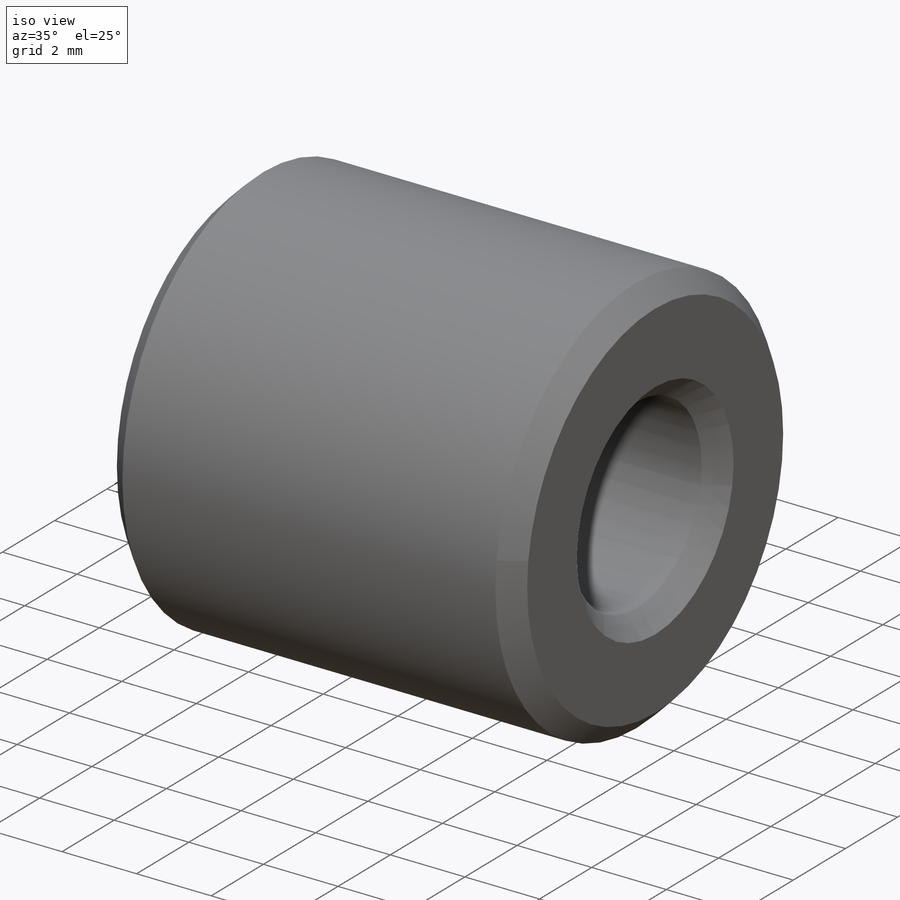
[diagram: iso view]
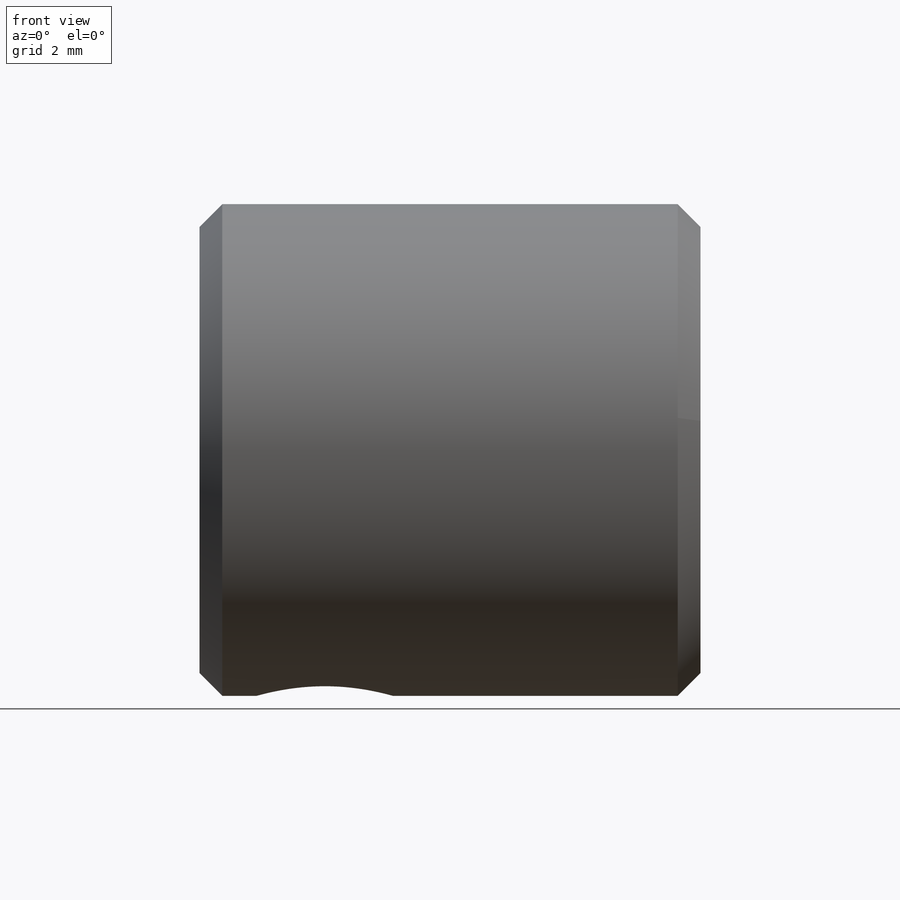
[diagram: front view]
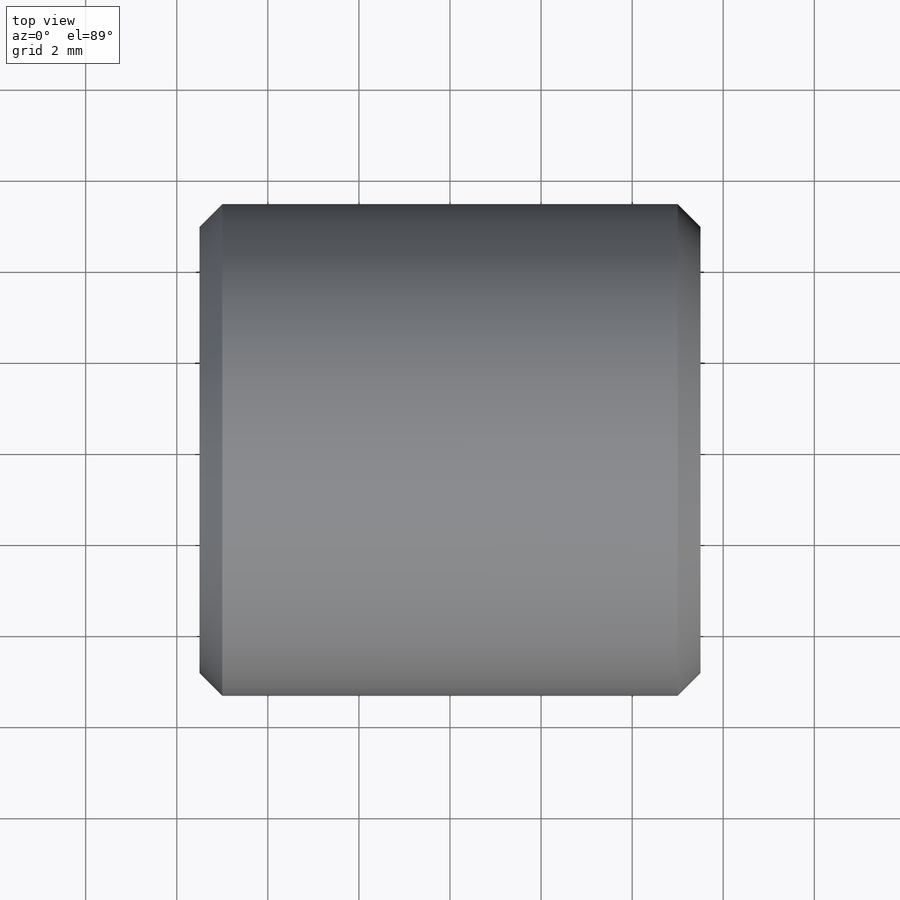
[diagram: top view]
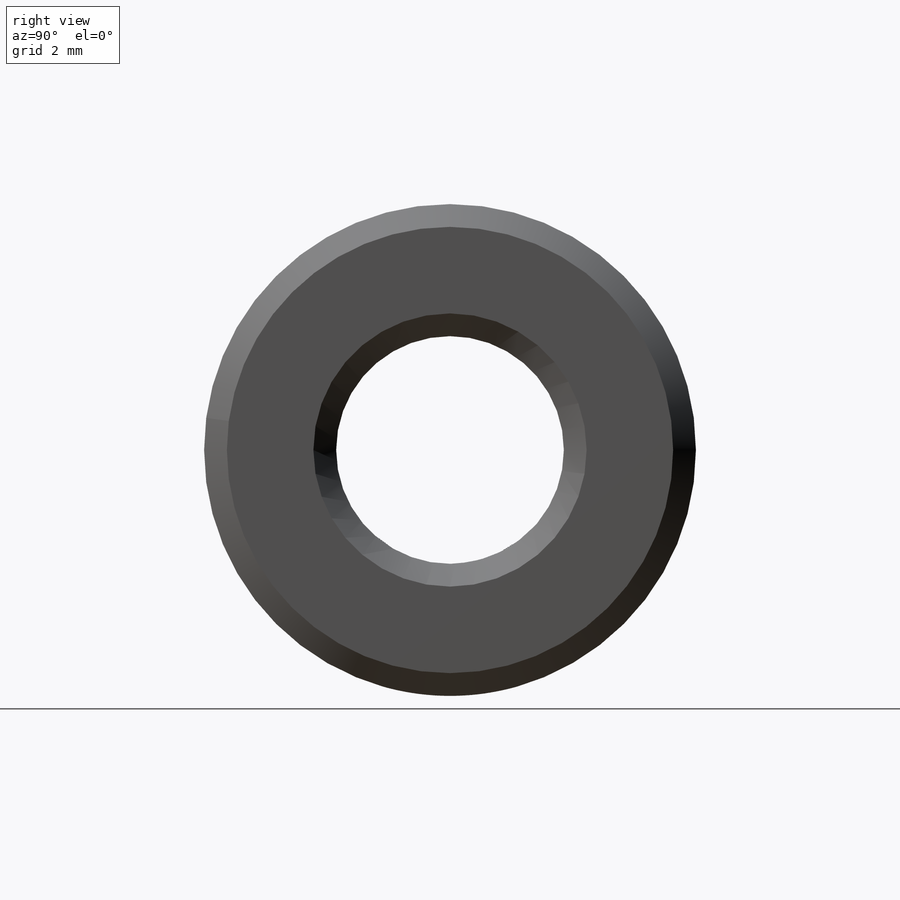
[diagram: right view]
SOLIDWORKS PART (.sldprt)
format: sldprt  version: not decoded by parser v0  size: 199,168 bytes
history: native  units: mm
features: sketch x2, material x1, revolve x1, cut_extrude x1, chamfer x1 (+11 scaffold rows collapsed)
feature tree (17):
  scaffold x11  (default folders/planes/origin — collapsed)
  material  "Material <not specified>"
  sketch  "Sketch1"  dims[c1.D1=1.778mm c1.D4=1.5mm c1.D5=1.5mm c1.D7=1.5mm c1.D8=1.5mm c1.D9=1.5mm c2.D1=11.0mm c2.D2=2.8mm c2.D3=12.8mm c2.D4=2.5mm c2.D5=10.0mm c3.D5=45.0deg c3.D6=9.5mm c4.D6=45.0deg c4.D7=10.0mm c5.D6=10.0mm c5.D7=1.0mm c5.D1=11.0mm c5.D2=5.5mm c5.D3=6.4mm c6.D6=~6.235786mm c6.D7=2.15mm c6.D8=6.9mm c7.D6=11.0mm c7.D3=6.9mm c8.D6=~6.235786mm c8.D8=~1.935786mm c9.D6=6.4mm c9.D8=6.4mm c9.D4=2.5mm c9.D3=5.4mm]
  revolve  "Revolve1"  Angle=360deg
  sketch  "Sketch2"  dims[D1=3.0mm D2=2.75mm]
  cut_extrude  "Cut-Extrude1"  Depth=10mm
  chamfer  "Chamfer1"  Distance=0.5mm Angle=45deg
decode coverage: 5 of 5 modeling features carry decoded parameters
note: ~ marks probable driven/reference dimensions
note: suppression state not decoded; provenance and decode notes live in map.json
